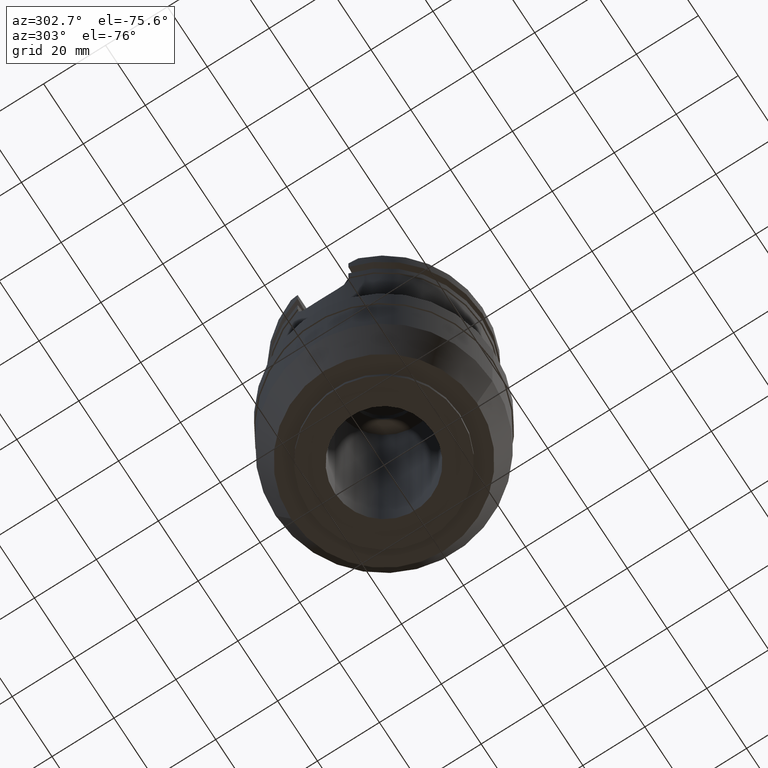
[diagram: clean part render]
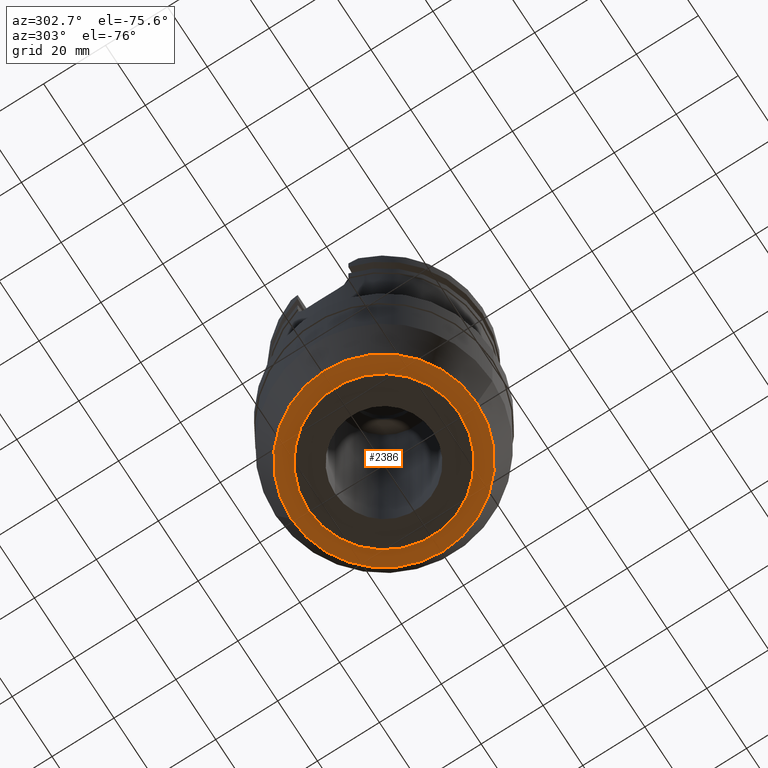
[diagram: same view with one face highlighted and labeled with its STEP entity id]
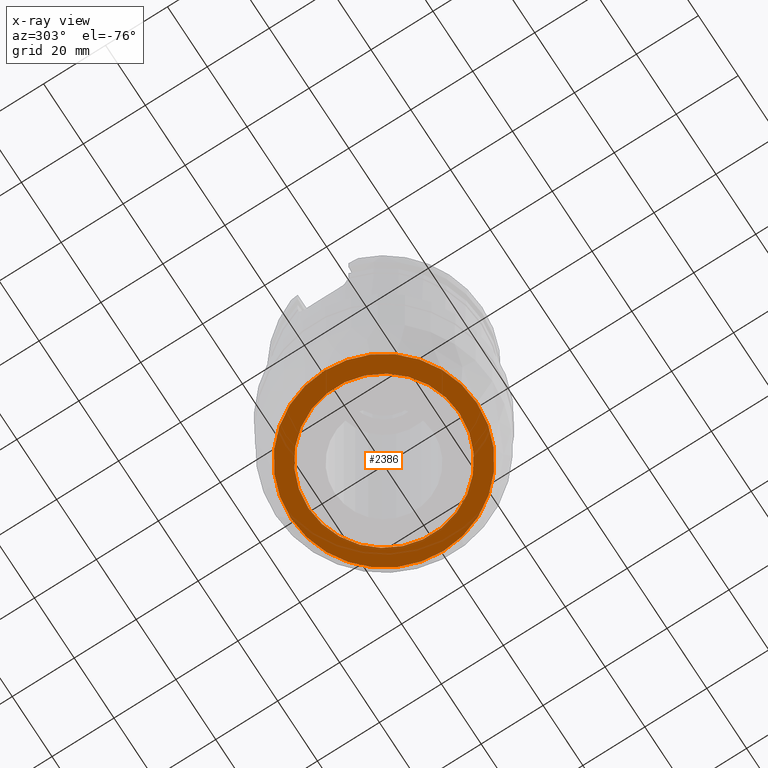
[diagram: x-ray of the same camera — body ghosted, the highlighted face saturated]
A machine part, auxiliary view. The second image highlights one B-rep face of the part: STEP entity #2386.
The next image is the same camera in x-ray: the body ghosted, the highlighted face saturated — about 0% of this face is hidden behind the body in this view.
In plain terms, the highlighted planar face has unit normal (0, 0, 1).
Its self-contained STEP definition (entity closure, byte-faithful):
#918=CARTESIAN_POINT('',(0.E0,0.E0,-1.016E2));
#919=DIRECTION('',(0.E0,0.E0,1.E0));
#920=DIRECTION('',(0.E0,-1.E0,0.E0));
#921=AXIS2_PLACEMENT_3D('',#918,#919,#920);
#926=CARTESIAN_POINT('',(0.E0,0.E0,-1.016E2));
#927=DIRECTION('',(0.E0,0.E0,1.E0));
#928=DIRECTION('',(0.E0,1.E0,0.E0));
#929=AXIS2_PLACEMENT_3D('',#926,#927,#928);
#934=CARTESIAN_POINT('',(0.E0,0.E0,-1.016E2));
#935=DIRECTION('',(0.E0,0.E0,-1.E0));
#936=DIRECTION('',(0.E0,-1.E0,0.E0));
#937=AXIS2_PLACEMENT_3D('',#934,#935,#936);
#942=CARTESIAN_POINT('',(0.E0,0.E0,-1.016E2));
#943=DIRECTION('',(0.E0,0.E0,-1.E0));
#944=DIRECTION('',(0.E0,1.E0,0.E0));
#945=AXIS2_PLACEMENT_3D('',#942,#943,#944);
#1625=CARTESIAN_POINT('',(0.E0,3.001360779055E1,-1.016E2));
#1626=VERTEX_POINT('',#1625);
#1627=CARTESIAN_POINT('',(0.E0,-3.001360779056E1,-1.016E2));
#1628=VERTEX_POINT('',#1627);
#1629=CARTESIAN_POINT('',(0.E0,-2.445E1,-1.016E2));
#1630=CARTESIAN_POINT('',(0.E0,2.445E1,-1.016E2));
#1631=VERTEX_POINT('',#1629);
#1632=VERTEX_POINT('',#1630);
#2371=CARTESIAN_POINT('',(0.E0,0.E0,-1.016E2));
#2372=DIRECTION('',(0.E0,0.E0,1.E0));
#2373=DIRECTION('',(0.E0,1.E0,0.E0));
#2374=AXIS2_PLACEMENT_3D('',#2371,#2372,#2373);
#2375=PLANE('',#2374);
#2376=ORIENTED_EDGE('',*,*,#2350,.T.);
#2377=ORIENTED_EDGE('',*,*,#2366,.T.);
#2378=EDGE_LOOP('',(#2376,#2377));
#2379=FACE_OUTER_BOUND('',#2378,.F.);
#2381=ORIENTED_EDGE('',*,*,#2380,.T.);
#2383=ORIENTED_EDGE('',*,*,#2382,.T.);
#2384=EDGE_LOOP('',(#2381,#2383));
#2385=FACE_BOUND('',#2384,.F.);
#922=CIRCLE('',#921,3.001360779056E1);
#930=CIRCLE('',#929,3.001360779056E1);
#938=CIRCLE('',#937,2.445E1);
#946=CIRCLE('',#945,2.445E1);
#2350=EDGE_CURVE('',#1628,#1626,#922,.T.);
#2366=EDGE_CURVE('',#1626,#1628,#930,.T.);
#2380=EDGE_CURVE('',#1631,#1632,#938,.T.);
#2382=EDGE_CURVE('',#1632,#1631,#946,.T.);
#2386=ADVANCED_FACE('',(#2379,#2385),#2375,.F.);